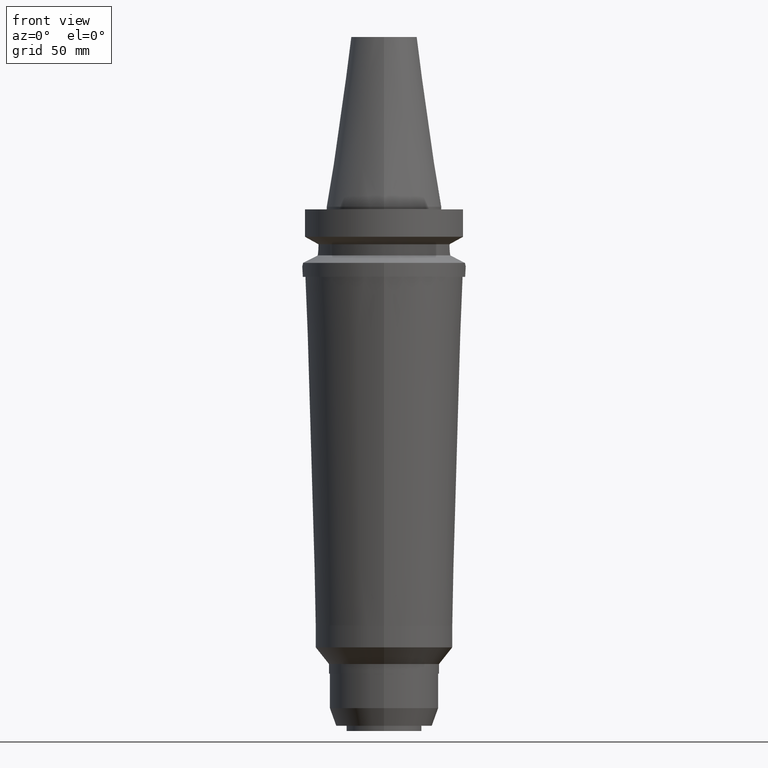
[diagram: clean part render]
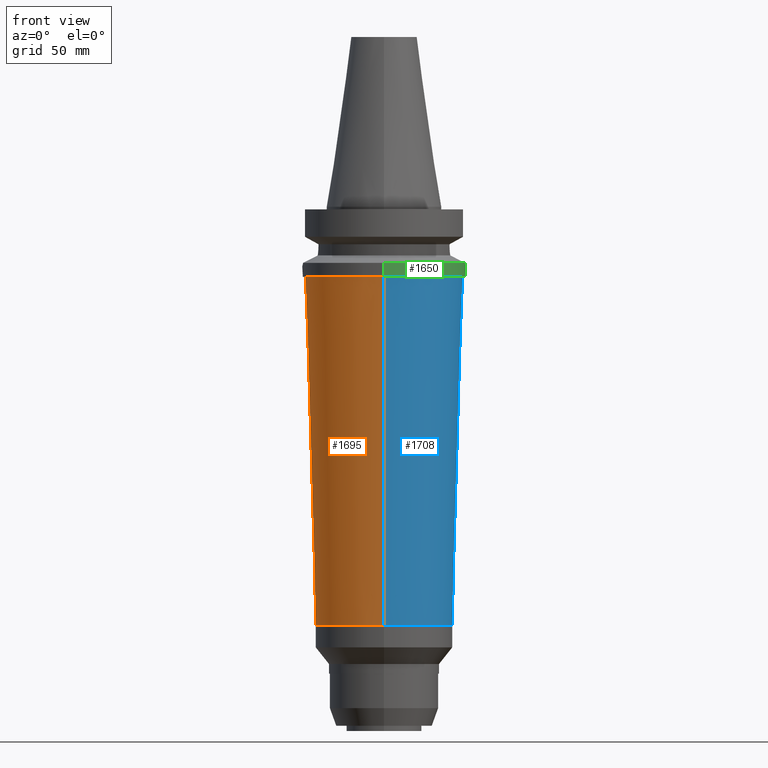
[diagram: same view with three faces highlighted in distinct colors, each labeled with its STEP entity id]
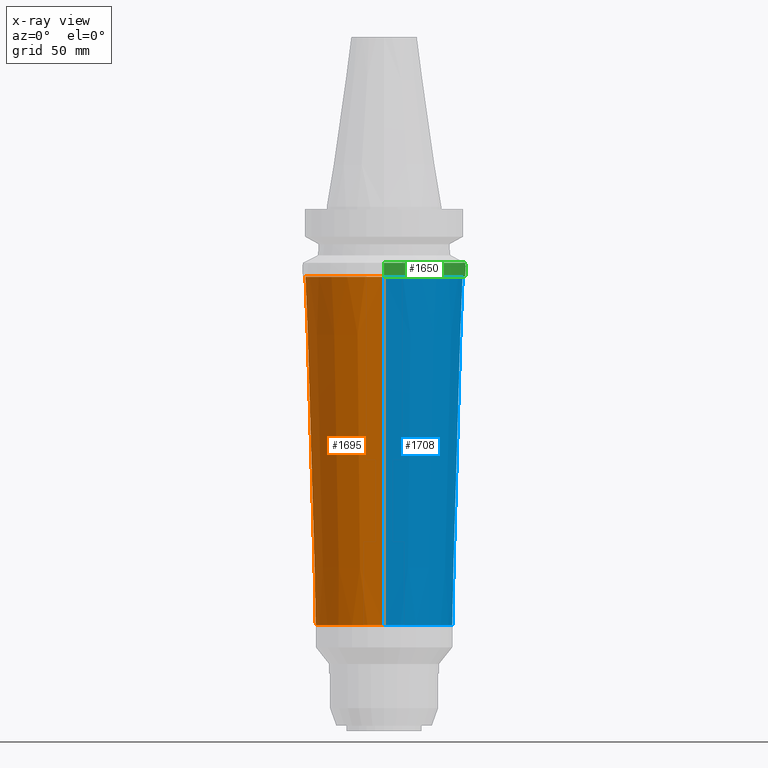
[diagram: x-ray of the same camera — body ghosted, the three highlighted faces saturated]
A machine part, front view with three faces highlighted in distinct colors.
The next image is the same camera in x-ray (body ghosted, the three faces saturated) — at least one of them is partly hidden behind the body in this view.
Their STEP definitions:

[orange] entity #1695 — the highlighted conical surface has half-angle 1.706 deg.
#580=CARTESIAN_POINT('',(0.E0,0.E0,-2.7E1));
#581=DIRECTION('',(0.E0,0.E0,-1.E0));
#582=DIRECTION('',(0.E0,-1.E0,0.E0));
#583=AXIS2_PLACEMENT_3D('',#580,#581,#582);
#596=DIRECTION('',(0.E0,2.977091758604E-2,-9.995567479969E-1));
#597=VECTOR('',#596,1.343595551420E2);
#598=CARTESIAN_POINT('',(0.E0,-3.050000724303E1,-2.7E1));
#599=LINE('',#598,#597);
#603=CARTESIAN_POINT('',(0.E0,0.E0,-1.613E2));
#604=DIRECTION('',(0.E0,0.E0,-1.E0));
#605=DIRECTION('',(0.E0,-1.E0,0.E0));
#606=AXIS2_PLACEMENT_3D('',#603,#604,#605);
#611=DIRECTION('',(0.E0,-2.977091758604E-2,-9.995567479969E-1));
#612=VECTOR('',#611,1.343595551420E2);
#613=CARTESIAN_POINT('',(0.E0,3.050000724303E1,-2.7E1));
#614=LINE('',#613,#612);
#1187=CARTESIAN_POINT('',(0.E0,-3.050000724302E1,-2.7E1));
#1188=CARTESIAN_POINT('',(0.E0,3.050000724302E1,-2.7E1));
#1189=VERTEX_POINT('',#1187);
#1190=VERTEX_POINT('',#1188);
#1191=CARTESIAN_POINT('',(0.E0,2.65E1,-1.613E2));
#1192=VERTEX_POINT('',#1191);
#1193=CARTESIAN_POINT('',(0.E0,-2.65E1,-1.613E2));
#1194=VERTEX_POINT('',#1193);
#1681=CARTESIAN_POINT('',(0.E0,0.E0,-9.415E1));
#1682=DIRECTION('',(0.E0,0.E0,1.E0));
#1683=DIRECTION('',(0.E0,1.E0,0.E0));
#1684=AXIS2_PLACEMENT_3D('',#1681,#1682,#1683);
#1685=CONICAL_SURFACE('',#1684,2.850000362151E1,1.706E0);
#1687=ORIENTED_EDGE('',*,*,#1686,.F.);
#1688=ORIENTED_EDGE('',*,*,#1674,.F.);
#1690=ORIENTED_EDGE('',*,*,#1689,.T.);
#1692=ORIENTED_EDGE('',*,*,#1691,.T.);
#1693=EDGE_LOOP('',(#1687,#1688,#1690,#1692));
#1694=FACE_OUTER_BOUND('',#1693,.F.);
#584=CIRCLE('',#583,3.050000724302E1);
#607=CIRCLE('',#606,2.65E1);
#1674=EDGE_CURVE('',#1189,#1190,#584,.T.);
#1686=EDGE_CURVE('',#1190,#1192,#614,.T.);
#1689=EDGE_CURVE('',#1189,#1194,#599,.T.);
#1691=EDGE_CURVE('',#1194,#1192,#607,.T.);
#1695=ADVANCED_FACE('',(#1694),#1685,.T.);

[blue] entity #1708 — the highlighted conical surface has half-angle 1.706 deg.
#588=CARTESIAN_POINT('',(0.E0,0.E0,-2.7E1));
#589=DIRECTION('',(0.E0,0.E0,-1.E0));
#590=DIRECTION('',(0.E0,1.E0,0.E0));
#591=AXIS2_PLACEMENT_3D('',#588,#589,#590);
#596=DIRECTION('',(0.E0,2.977091758604E-2,-9.995567479969E-1));
#597=VECTOR('',#596,1.343595551420E2);
#598=CARTESIAN_POINT('',(0.E0,-3.050000724303E1,-2.7E1));
#599=LINE('',#598,#597);
#611=DIRECTION('',(0.E0,-2.977091758604E-2,-9.995567479969E-1));
#612=VECTOR('',#611,1.343595551420E2);
#613=CARTESIAN_POINT('',(0.E0,3.050000724303E1,-2.7E1));
#614=LINE('',#613,#612);
#618=CARTESIAN_POINT('',(0.E0,0.E0,-1.613E2));
#619=DIRECTION('',(0.E0,0.E0,-1.E0));
#620=DIRECTION('',(0.E0,1.E0,0.E0));
#621=AXIS2_PLACEMENT_3D('',#618,#619,#620);
#1187=CARTESIAN_POINT('',(0.E0,-3.050000724302E1,-2.7E1));
#1188=CARTESIAN_POINT('',(0.E0,3.050000724302E1,-2.7E1));
#1189=VERTEX_POINT('',#1187);
#1190=VERTEX_POINT('',#1188);
#1191=CARTESIAN_POINT('',(0.E0,2.65E1,-1.613E2));
#1192=VERTEX_POINT('',#1191);
#1193=CARTESIAN_POINT('',(0.E0,-2.65E1,-1.613E2));
#1194=VERTEX_POINT('',#1193);
#1696=CARTESIAN_POINT('',(0.E0,0.E0,-9.415E1));
#1697=DIRECTION('',(0.E0,0.E0,1.E0));
#1698=DIRECTION('',(0.E0,1.E0,0.E0));
#1699=AXIS2_PLACEMENT_3D('',#1696,#1697,#1698);
#1700=CONICAL_SURFACE('',#1699,2.850000362151E1,1.706E0);
#1701=ORIENTED_EDGE('',*,*,#1686,.T.);
#1703=ORIENTED_EDGE('',*,*,#1702,.T.);
#1704=ORIENTED_EDGE('',*,*,#1689,.F.);
#1705=ORIENTED_EDGE('',*,*,#1676,.F.);
#1706=EDGE_LOOP('',(#1701,#1703,#1704,#1705));
#1707=FACE_OUTER_BOUND('',#1706,.F.);
#592=CIRCLE('',#591,3.050000724302E1);
#622=CIRCLE('',#621,2.65E1);
#1676=EDGE_CURVE('',#1190,#1189,#592,.T.);
#1686=EDGE_CURVE('',#1190,#1192,#614,.T.);
#1689=EDGE_CURVE('',#1189,#1194,#599,.T.);
#1702=EDGE_CURVE('',#1192,#1194,#622,.T.);
#1708=ADVANCED_FACE('',(#1707),#1700,.T.);

[green] entity #1650 — the highlighted cylindrical surface (partial cylindrical patch) has radius 31.5 mm, axis along (0, 0, 1).
#418=DIRECTION('',(0.E0,-1.099151708819E-13,-1.E0));
#419=VECTOR('',#418,5.365505652669E0);
#420=CARTESIAN_POINT('',(0.E0,-3.15E1,-2.163449434733E1));
#421=LINE('',#420,#419);
#462=CARTESIAN_POINT('',(0.E0,0.E0,-2.163449434733E1));
#463=DIRECTION('',(0.E0,0.E0,-1.E0));
#464=DIRECTION('',(9.898094849553E-1,-1.423979757319E-1,0.E0));
#465=AXIS2_PLACEMENT_3D('',#462,#463,#464);
#492=CARTESIAN_POINT('',(3.117899877609E1,-4.485536235554E0,-2.163449434733E1));
#493=CARTESIAN_POINT('',(3.125744182707E1,-3.940277951613E0,-2.200038227591E1));
#494=CARTESIAN_POINT('',(3.139235046217E1,-2.800449462963E0,-2.257591558657E1));
#495=CARTESIAN_POINT('',(3.150499501807E1,-9.469887753343E-1,
-2.301989508171E1));
#496=CARTESIAN_POINT('',(3.150416957439E1,9.709330130588E-1,-2.301672670624E1));
#497=CARTESIAN_POINT('',(3.139077248684E1,2.815458121564E0,-2.256945171747E1));
#498=CARTESIAN_POINT('',(3.125668373179E1,3.945547478022E0,-2.199684623408E1));
#499=CARTESIAN_POINT('',(3.117899877609E1,4.485536235554E0,-2.163449434733E1));
#504=DIRECTION('',(0.E0,1.099151708819E-13,-1.E0));
#505=VECTOR('',#504,5.365505652669E0);
#506=CARTESIAN_POINT('',(0.E0,3.15E1,-2.163449434733E1));
#507=LINE('',#506,#505);
#530=CARTESIAN_POINT('',(0.E0,0.E0,-2.163449434733E1));
#531=DIRECTION('',(0.E0,0.E0,-1.E0));
#532=DIRECTION('',(0.E0,1.E0,0.E0));
#533=AXIS2_PLACEMENT_3D('',#530,#531,#532);
#564=CARTESIAN_POINT('',(0.E0,0.E0,-2.7E1));
#565=DIRECTION('',(0.E0,0.E0,1.E0));
#566=DIRECTION('',(0.E0,-1.E0,0.E0));
#567=AXIS2_PLACEMENT_3D('',#564,#565,#566);
#1175=VERTEX_POINT('',#492);
#1176=VERTEX_POINT('',#499);
#1177=CARTESIAN_POINT('',(0.E0,3.15E1,-2.163449434733E1));
#1178=VERTEX_POINT('',#1177);
#1179=CARTESIAN_POINT('',(0.E0,3.15E1,-2.7E1));
#1180=VERTEX_POINT('',#1179);
#1181=CARTESIAN_POINT('',(0.E0,-3.15E1,-2.7E1));
#1182=VERTEX_POINT('',#1181);
#1183=CARTESIAN_POINT('',(0.E0,-3.15E1,-2.163449434733E1));
#1184=VERTEX_POINT('',#1183);
#1635=CARTESIAN_POINT('',(0.E0,0.E0,-2.1537E2));
#1636=DIRECTION('',(0.E0,0.E0,1.E0));
#1637=DIRECTION('',(0.E0,1.E0,0.E0));
#1638=AXIS2_PLACEMENT_3D('',#1635,#1636,#1637);
#1639=CYLINDRICAL_SURFACE('',#1638,3.15E1);
#1640=ORIENTED_EDGE('',*,*,#1621,.T.);
#1642=ORIENTED_EDGE('',*,*,#1641,.F.);
#1643=ORIENTED_EDGE('',*,*,#1593,.T.);
#1645=ORIENTED_EDGE('',*,*,#1644,.F.);
#1646=ORIENTED_EDGE('',*,*,#1589,.F.);
#1647=ORIENTED_EDGE('',*,*,#1610,.F.);
#1648=EDGE_LOOP('',(#1640,#1642,#1643,#1645,#1646,#1647));
#1649=FACE_OUTER_BOUND('',#1648,.F.);
#466=CIRCLE('',#465,3.15E1);
#500=B_SPLINE_CURVE_WITH_KNOTS('',3,(#492,#493,#494,#495,#496,#497,#498,#499),
.UNSPECIFIED.,.F.,.F.,(4,1,1,1,1,4),(0.E0,2.E-1,4.E-1,6.E-1,8.E-1,1.E0),
.UNSPECIFIED.);
#534=CIRCLE('',#533,3.15E1);
#568=CIRCLE('',#567,3.15E1);
#1589=EDGE_CURVE('',#1184,#1182,#421,.T.);
#1593=EDGE_CURVE('',#1178,#1180,#507,.T.);
#1610=EDGE_CURVE('',#1175,#1184,#466,.T.);
#1621=EDGE_CURVE('',#1175,#1176,#500,.T.);
#1641=EDGE_CURVE('',#1178,#1176,#534,.T.);
#1644=EDGE_CURVE('',#1182,#1180,#568,.T.);
#1650=ADVANCED_FACE('',(#1649),#1639,.T.);